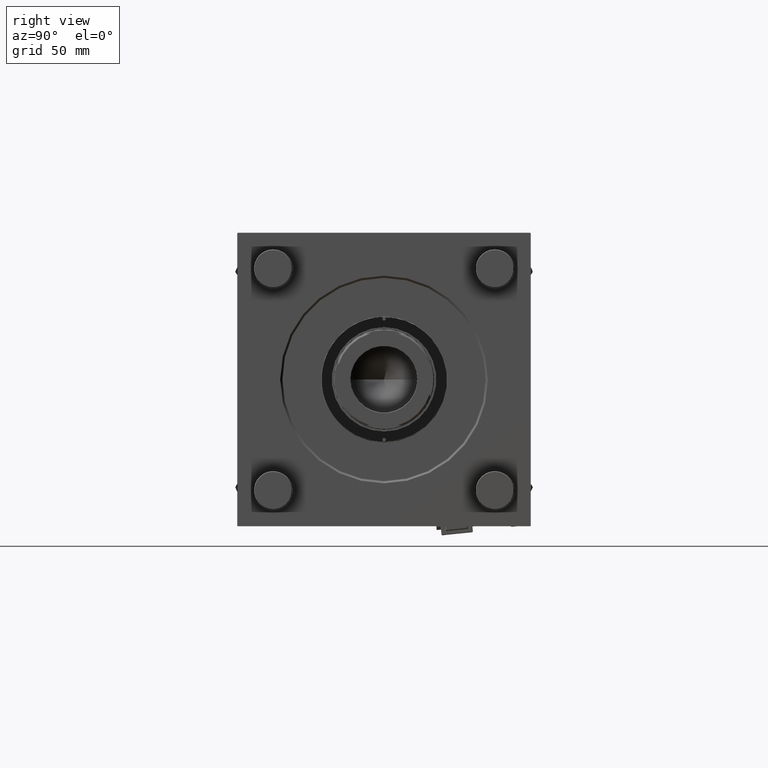
[diagram: clean part render]
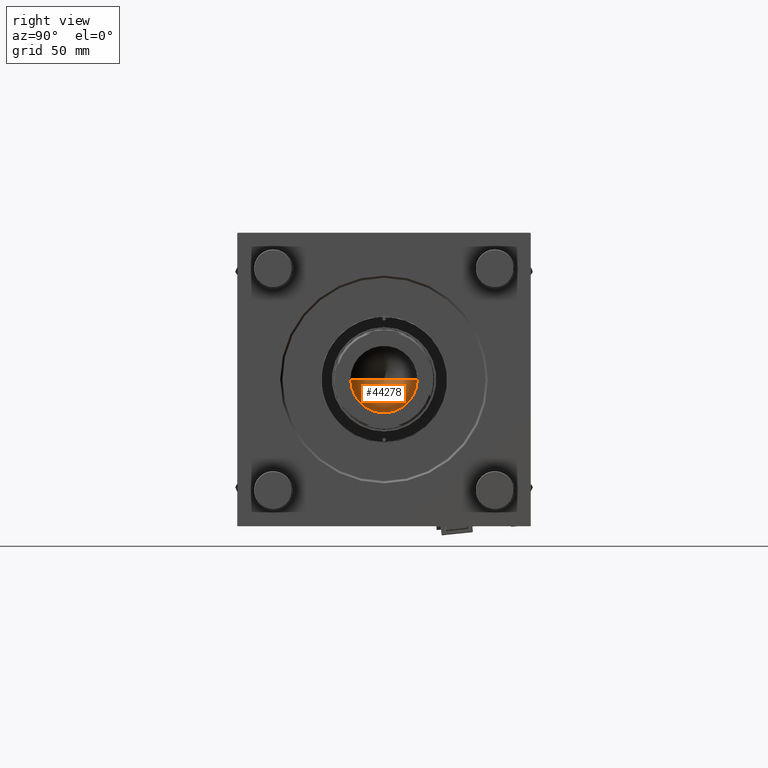
[diagram: same view with one face highlighted and labeled with its STEP entity id]
A machine part, right view. The second image highlights one B-rep face of the part: STEP entity #44278.
In plain terms, the highlighted conical surface has half-angle 59 deg.
Its self-contained STEP definition (entity closure, byte-faithful):
#582 = VERTEX_POINT ( 'NONE', #38281 ) ;
#720 = CARTESIAN_POINT ( 'NONE',  ( -23.24999999999998579, 2.847303808017594561E-15, 197.0000000000000000 ) ) ;
#3148 = CARTESIAN_POINT ( 'NONE',  ( 23.24999999999998579, 0.000000000000000000, 197.0000000000000000 ) ) ;
#4928 = CARTESIAN_POINT ( 'NONE',  ( -23.24999999999998579, 2.847303808017594561E-15, 197.0000000000000000 ) ) ;
#6854 = DIRECTION ( 'NONE',  ( 1.000000000000000000, 0.000000000000000000, 0.000000000000000000 ) ) ;
#8534 = DIRECTION ( 'NONE',  ( 0.8571673007021117785, 0.000000000000000000, 0.5150380749100550437 ) ) ;
#10479 = EDGE_CURVE ( 'NONE', #582, #51539, #32941, .T. ) ;
#11860 = VERTEX_POINT ( 'NONE', #49974 ) ;
#14675 = ORIENTED_EDGE ( 'NONE', *, *, #10479, .F. ) ;
#17300 = ORIENTED_EDGE ( 'NONE', *, *, #22172, .T. ) ;
#20423 = CARTESIAN_POINT ( 'NONE',  ( 0.000000000000000000, 0.000000000000000000, 197.0000000000000000 ) ) ;
#21636 = EDGE_LOOP ( 'NONE', ( #14675, #48366, #17300 ) ) ;
#22172 = EDGE_CURVE ( 'NONE', #11860, #51539, #56316, .T. ) ;
#23297 = CONICAL_SURFACE ( 'NONE', #35762, 23.24999999999998579, 1.029744258676653423 ) ;
#30866 = DIRECTION ( 'NONE',  ( 1.000000000000000000, 0.000000000000000000, 0.000000000000000000 ) ) ;
#32941 = LINE ( 'NONE', #720, #38498 ) ;
#33686 = VECTOR ( 'NONE', #8534, 1000.000000000000000 ) ;
#35762 = AXIS2_PLACEMENT_3D ( 'NONE', #58295, #57999, #30866 ) ;
#38281 = CARTESIAN_POINT ( 'NONE',  ( -1.584115414415908206E-14, 0.000000000000000000, 183.0299906076092213 ) ) ;
#38498 = VECTOR ( 'NONE', #47099, 1000.000000000000000 ) ;
#39096 = EDGE_CURVE ( 'NONE', #582, #11860, #58256, .T. ) ;
#39348 = DIRECTION ( 'NONE',  ( -0.000000000000000000, -0.000000000000000000, 1.000000000000000000 ) ) ;
#40884 = AXIS2_PLACEMENT_3D ( 'NONE', #20423, #39348, #6854 ) ;
#44278 = ADVANCED_FACE ( 'NONE', ( #44727 ), #23297, .F. ) ;
#44727 = FACE_OUTER_BOUND ( 'NONE', #21636, .T. ) ;
#47099 = DIRECTION ( 'NONE',  ( -0.8571673007021117785, 1.049727191138617956E-16, 0.5150380749100550437 ) ) ;
#48366 = ORIENTED_EDGE ( 'NONE', *, *, #39096, .T. ) ;
#49974 = CARTESIAN_POINT ( 'NONE',  ( 23.24999999999998579, 0.000000000000000000, 197.0000000000000000 ) ) ;
#51539 = VERTEX_POINT ( 'NONE', #4928 ) ;
#56316 = CIRCLE ( 'NONE', #40884, 23.24999999999998579 ) ;
#57999 = DIRECTION ( 'NONE',  ( -0.000000000000000000, -0.000000000000000000, 1.000000000000000000 ) ) ;
#58256 = LINE ( 'NONE', #3148, #33686 ) ;
#58295 = CARTESIAN_POINT ( 'NONE',  ( 0.000000000000000000, 0.000000000000000000, 197.0000000000000000 ) ) ;